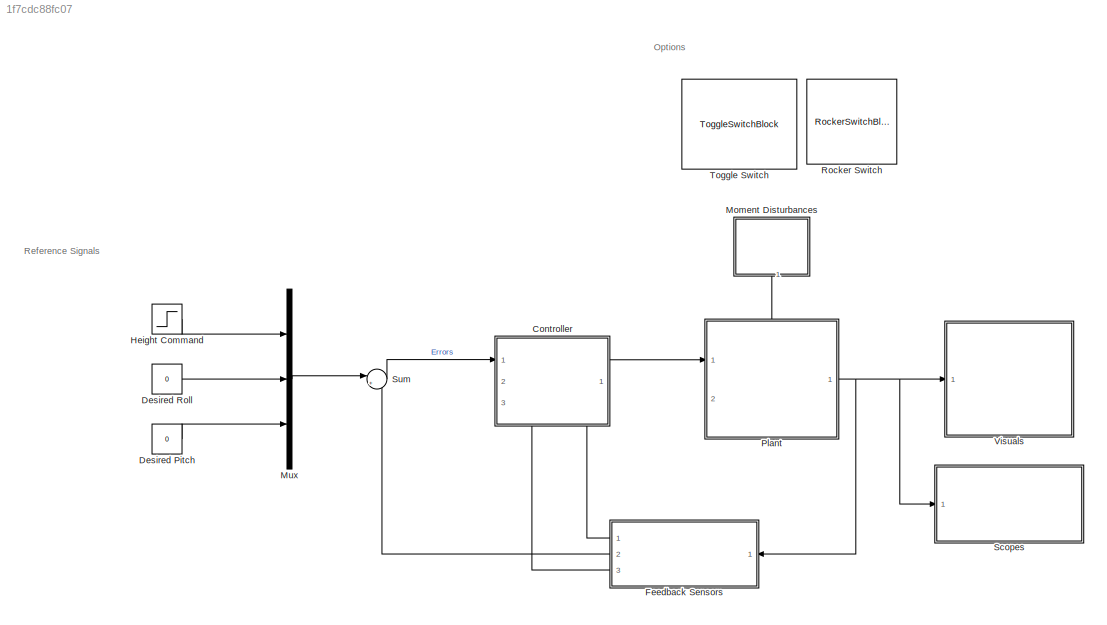
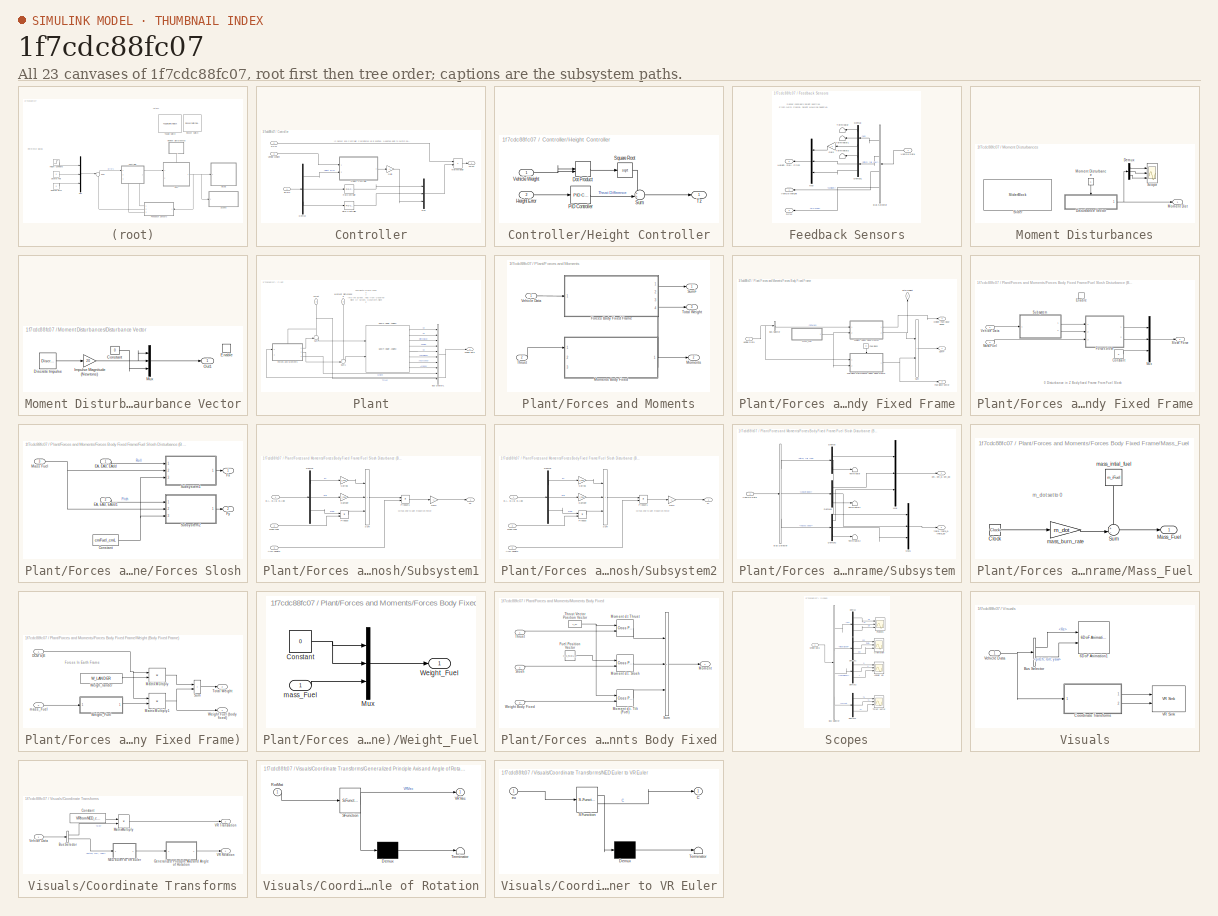
[diagram: thumbnail index - all 23 canvases of the model, root first then tree order]
MODEL slx_1f7cdc88fc07
KIND model
CONFIG AbsTol = auto
CONFIG EnableMultiTasking = off
CONFIG FixedStep = auto
CONFIG MaxStep = auto
CONFIG MinStep = auto
CONFIG RelTol = 1e-3
CONFIG SampleTimeConstraint = Unconstrained
CONFIG SolverName = VariableStepAuto
CONFIG StartTime = 0.0
CONFIG StopTime = 10.0
BLOCK [SubSystem] Controller
  PortSchema = {"entries":[{"content":{"sides":[{"content":{"connectorIds":["In1"]},"type":"ConnectorPlacement.EquallySpacedRectSide","uuid":"a9e81047-82e7-465f-ace1-8f718b90561e"},{"content":{"connectorIds":["Out1"],"side":"RIGHT"},"type":"ConnectorPlacement.EquallySpacedRectSide","uuid":"e48627af-c2aa-4531-b804-41f44ff16765"},{"content":{"connectorIds":[],"side":"TOP"},"type":"ConnectorPlacement.EquallySpacedR...<+395ch>
  Ports = [3, 1]
  RequestExecContextInheritance = off
  TreatAsAtomicUnit = on
BLOCK [Inport] Controller/DCM
  Port = 2
BLOCK [Demux] Controller/Demux
  Outputs = 3
  Ports = [1, 3]
BLOCK [Inport] Controller/Errors
BLOCK [Gain] Controller/Gain
  Gain = -1
BLOCK [SubSystem] Controller/Height Controller
  Ports = [2, 1]
  RequestExecContextInheritance = off
BLOCK [DotProduct] Controller/Height Controller/Dot Product
  OutDataTypeStr = Inherit: Inherit via internal rule
BLOCK [Inport] Controller/Height Controller/Height Error
  Port = 2
BLOCK [Reference] Controller/Height Controller/PID Controller  REF=slpidlib/PID Controller
  Ports = [1, 1]
  SourceBlock = slpidlib/PID Controller
  SourceProductBaseCode = SL
  SourceType = PID 1dof
BLOCK [Sqrt] Controller/Height Controller/Square Root
BLOCK [Sum] Controller/Height Controller/Sum
  Inputs = ++|
  Ports = [2, 1]
BLOCK [Outport] Controller/Height Controller/Tz
BLOCK [Inport] Controller/Height Controller/Vehicle Weight
BLOCK [Product] Controller/MatrixMultiply
  Multiplication = Matrix(*)
  Ports = [2, 1]
BLOCK [Mux] Controller/Mux
  DisplayOption = bar
  Inputs = 3
  Ports = [3, 1]
BLOCK [Reference] Controller/Pitch Controller  REF=slpidlib/PID Controller
  Ports = [1, 1]
  SourceBlock = slpidlib/PID Controller
  SourceProductBaseCode = SL
  SourceType = PID 1dof
BLOCK [Reference] Controller/Roll Controller  REF=slpidlib/PID Controller
  Ports = [1, 1]
  SourceBlock = slpidlib/PID Controller
  SourceProductBaseCode = SL
  SourceType = PID 1dof
BLOCK [Outport] Controller/Thrust
BLOCK [Inport] Controller/Vehicle Weight
  Port = 3
BLOCK [Constant] Desired Pitch
  Value = 0
BLOCK [Constant] Desired Roll
  Value = 0
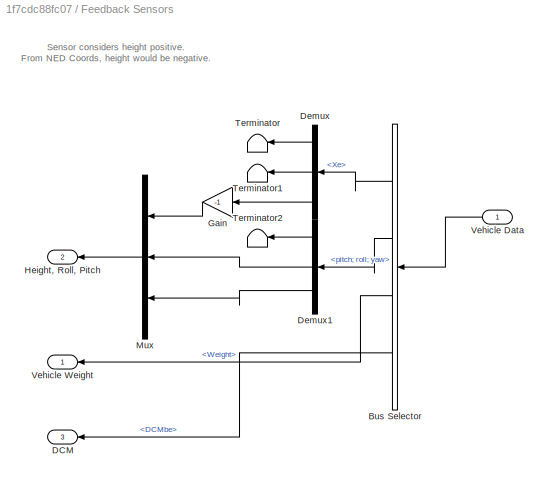
BLOCK [SubSystem] Feedback Sensors
  NameLocation = top
  Ports = [1, 3]
  RequestExecContextInheritance = off
BLOCK [BusSelector] Feedback Sensors/Bus Selector
  NameLocation = top
  OutputSignals = Xe,pitch; roll; yaw,Weight,DCMbe
  Ports = [1, 4]
BLOCK [Outport] Feedback Sensors/DCM
  NameLocation = top
  Port = 3
BLOCK [Demux] Feedback Sensors/Demux
  NameLocation = top
  Outputs = 3
  Ports = [1, 3]
BLOCK [Demux] Feedback Sensors/Demux1
  NameLocation = top
  Outputs = 3
  Ports = [1, 3]
BLOCK [Gain] Feedback Sensors/Gain
  Gain = -1
  NameLocation = top
BLOCK [Outport] Feedback Sensors/Height, Roll, Pitch
  NameLocation = top
  Port = 2
BLOCK [Mux] Feedback Sensors/Mux
  DisplayOption = bar
  Inputs = 3
  NameLocation = top
  Ports = [3, 1]
BLOCK [Terminator] Feedback Sensors/Terminator
  NameLocation = top
BLOCK [Terminator] Feedback Sensors/Terminator1
  NameLocation = top
BLOCK [Terminator] Feedback Sensors/Terminator2
  NameLocation = top
BLOCK [Inport] Feedback Sensors/Vehicle Data
  NameLocation = top
BLOCK [Outport] Feedback Sensors/Vehicle Weight
  NameLocation = top
BLOCK [Step] Height Command
  SampleTime = 0
BLOCK [SubSystem] Moment Disturbances
  NameLocation = top
  Ports = [0, 1]
  RequestExecContextInheritance = off
BLOCK [Demux] Moment Disturbances/Demux
  Outputs = 3
  Ports = [1, 3]
BLOCK [SubSystem] Moment Disturbances/Disturbance Vector
  Ports = [0, 1, 1]
  RequestExecContextInheritance = off
BLOCK [Constant] Moment Disturbances/Disturbance Vector/Constant
  Value = 0
BLOCK [Reference] Moment Disturbances/Disturbance Vector/Discrete Impulse  REF=dspsrcs4/Discrete 
Impulse
  Ports = [0, 1]
  SourceBlock = dspsrcs4/Discrete \nImpulse
  SourceProductBaseCode = DS
  SourceType = Discrete Impulse
BLOCK [EnablePort] Moment Disturbances/Disturbance Vector/Enable
  Ports = []
BLOCK [Gain] Moment Disturbances/Disturbance Vector/Impulse Magnitude (Newtons)
  Gain = 20
BLOCK [Mux] Moment Disturbances/Disturbance Vector/Mux
  DisplayOption = bar
  Inputs = 3
  Ports = [3, 1]
BLOCK [Outport] Moment Disturbances/Disturbance Vector/Out1
BLOCK [Outport] Moment Disturbances/Moment Dist
BLOCK [Constant] Moment Disturbances/Moment Disturbance
  NameLocation = left
BLOCK [Scope] Moment Disturbances/Scope
  Floating = off
  NumInputPorts = 3
  Ports = [3]
  ScopeSpecificationString = Simulink.scopes.TimeScopeBlockCfg('CurrentConfiguration', extmgr.ConfigurationSet(extmgr.Configuration('Core','General UI',true),extmgr.Configuration('Core','Source UI',true),extmgr.Configuration('Sources','WiredSimulink',true,'DataLoggingVariableName','ScopeData1'),extmgr.Configuration('Visuals','Time Domain',true,'SerializedDisplays',{struct('MinYLimReal','-1.00000','MaxYLimReal','1.00000','YLab...<+2762ch>
BLOCK [SliderBlock] Moment Disturbances/Slider
  ScaleMax = 20
BLOCK [Mux] Mux
  DisplayOption = bar
  Inputs = 3
  Ports = [3, 1]
BLOCK [SubSystem] Plant
  PortSchema = {"entries":[{"content":{"sides":[{"content":{"connectorIds":["In1"]},"type":"ConnectorPlacement.EquallySpacedRectSide","uuid":"a9e81047-82e7-465f-ace1-8f718b90561e"},{"content":{"connectorIds":["Out1"],"side":"RIGHT"},"type":"ConnectorPlacement.EquallySpacedRectSide","uuid":"e48627af-c2aa-4531-b804-41f44ff16765"},{"content":{"connectorIds":["In2"],"side":"TOP"},"type":"ConnectorPlacement.EquallySp...<+245ch>
  Ports = [2, 1]
  RequestExecContextInheritance = off
BLOCK [Reference] Plant/6DOF (Euler Angles)  REF=shared6dof/6DOF (Euler Angles)
  Ports = [2, 8]
  SourceBlock = shared6dof/6DOF (Euler Angles)
  SourceProductBaseCode = AE,PW,DR,MT,UV,VE
  SourceType = 6DOF EoM (Body Axis)
BLOCK [BusCreator] Plant/Bus Creator1
  DisplayOption = bar
  InheritFromInputs = on
  Inputs = 10
  Ports = [10, 1]
BLOCK [SubSystem] Plant/Forces and Moments
  PortSchema = {"entries":[{"content":{"sides":[{"content":{"connectorIds":["In1"]},"type":"ConnectorPlacement.EquallySpacedRectSide","uuid":"828f15e3-cbad-415f-85fb-ba6a8e0cd3b9"},{"content":{"connectorIds":["Out1","Out2","Out3"],"side":"RIGHT"},"type":"ConnectorPlacement.EquallySpacedRectSide","uuid":"5000816a-8e0b-4f65-bf77-7d05076903d9"},{"content":{"connectorIds":["In2"],"side":"TOP"},"type":"ConnectorPlace...<+259ch>
  Ports = [2, 3]
  RequestExecContextInheritance = off
BLOCK [SubSystem] Plant/Forces and Moments/Forces Body Fixed Frame
  PortSchema = {"entries":[{"content":{"sides":[{"content":{"connectorIds":["In1"]},"type":"ConnectorPlacement.EquallySpacedRectSide","uuid":"828f15e3-cbad-415f-85fb-ba6a8e0cd3b9"},{"content":{"connectorIds":["Out1","Out2"],"side":"RIGHT"},"type":"ConnectorPlacement.EquallySpacedRectSide","uuid":"5000816a-8e0b-4f65-bf77-7d05076903d9"},{"content":{"connectorIds":[],"side":"TOP"},"type":"ConnectorPlacement.Equally...<+404ch>
  Ports = [1, 4]
  RequestExecContextInheritance = off
  TreatAsAtomicUnit = on
BLOCK [BusSelector] Plant/Forces and Moments/Forces Body Fixed Frame/Bus Selector
  OutputSignals = DCMbe
  Ports = [1, 1]
BLOCK [Constant] Plant/Forces and Moments/Forces Body Fixed Frame/Fuel Slosh
  NameLocation = left
  Value = 0
BLOCK [SubSystem] Plant/Forces and Moments/Forces Body Fixed Frame/Fuel Slosh Disturbance (Body Fixed Frame
  Ports = [2, 1, 1]
  RequestExecContextInheritance = off
BLOCK [Constant] Plant/Forces and Moments/Forces Body Fixed Frame/Fuel Slosh Disturbance (Body Fixed Frame/Constant
  Value = 0
BLOCK [EnablePort] Plant/Forces and Moments/Forces Body Fixed Frame/Fuel Slosh Disturbance (Body Fixed Frame/Enable
  Ports = []
BLOCK [SubSystem] Plant/Forces and Moments/Forces Body Fixed Frame/Fuel Slosh Disturbance (Body Fixed Frame/Forces Slosh
  Ports = [3, 2]
  RequestExecContextInheritance = off
BLOCK [Constant] Plant/Forces and Moments/Forces Body Fixed Frame/Fuel Slosh Disturbance (Body Fixed Frame/Forces Slosh/Constant
  Value = cmFuel_cmL
BLOCK [Inport] Plant/Forces and Moments/Forces Body Fixed Frame/Fuel Slosh Disturbance (Body Fixed Frame/Forces Slosh/EA, EAd, EAdd
BLOCK [Inport] Plant/Forces and Moments/Forces Body Fixed Frame/Fuel Slosh Disturbance (Body Fixed Frame/Forces Slosh/EA, EAd, EAdd1
  Port = 2
BLOCK [Outport] Plant/Forces and Moments/Forces Body Fixed Frame/Fuel Slosh Disturbance (Body Fixed Frame/Forces Slosh/Fx
BLOCK [Outport] Plant/Forces and Moments/Forces Body Fixed Frame/Fuel Slosh Disturbance (Body Fixed Frame/Forces Slosh/Fy
  Port = 2
BLOCK [Inport] Plant/Forces and Moments/Forces Body Fixed Frame/Fuel Slosh Disturbance (Body Fixed Frame/Forces Slosh/Mass Fuel
  Port = 3
BLOCK [SubSystem] Plant/Forces and Moments/Forces Body Fixed Frame/Fuel Slosh Disturbance (Body Fixed Frame/Forces Slosh/Subsystem1
  Ports = [3, 1]
  RequestExecContextInheritance = off
BLOCK [Inport] Plant/Forces and Moments/Forces Body Fixed Frame/Fuel Slosh Disturbance (Body Fixed Frame/Forces Slosh/Subsystem1/Arm Length
  Port = 3
BLOCK [Gain] Plant/Forces and Moments/Forces Body Fixed Frame/Fuel Slosh Disturbance (Body Fixed Frame/Forces Slosh/Subsystem1/Damper
  Gain = c_Fuel
BLOCK [Demux] Plant/Forces and Moments/Forces Body Fixed Frame/Fuel Slosh Disturbance (Body Fixed Frame/Forces Slosh/Subsystem1/Demux
  Outputs = 3
  Ports = [1, 3]
BLOCK [Inport] Plant/Forces and Moments/Forces Body Fixed Frame/Fuel Slosh Disturbance (Body Fixed Frame/Forces Slosh/Subsystem1/EA, EAd, EAdd
BLOCK [Outport] Plant/Forces and Moments/Forces Body Fixed Frame/Fuel Slosh Disturbance (Body Fixed Frame/Forces Slosh/Subsystem1/Fx
BLOCK [Gain] Plant/Forces and Moments/Forces Body Fixed Frame/Fuel Slosh Disturbance (Body Fixed Frame/Forces Slosh/Subsystem1/Gain
  Gain = -1
BLOCK [Inport] Plant/Forces and Moments/Forces Body Fixed Frame/Fuel Slosh Disturbance (Body Fixed Frame/Forces Slosh/Subsystem1/Mass Fuel
  Port = 2
BLOCK [Product] Plant/Forces and Moments/Forces Body Fixed Frame/Fuel Slosh Disturbance (Body Fixed Frame/Forces Slosh/Subsystem1/Product
  Ports = [2, 1]
BLOCK [Product] Plant/Forces and Moments/Forces Body Fixed Frame/Fuel Slosh Disturbance (Body Fixed Frame/Forces Slosh/Subsystem1/Product1
  Ports = [2, 1]
BLOCK [Gain] Plant/Forces and Moments/Forces Body Fixed Frame/Fuel Slosh Disturbance (Body Fixed Frame/Forces Slosh/Subsystem1/Spring
  Gain = k_Fuel
BLOCK [Sum] Plant/Forces and Moments/Forces Body Fixed Frame/Fuel Slosh Disturbance (Body Fixed Frame/Forces Slosh/Subsystem1/Sum
  IconShape = rectangular
  Inputs = +++
  Ports = [3, 1]
BLOCK [SubSystem] Plant/Forces and Moments/Forces Body Fixed Frame/Fuel Slosh Disturbance (Body Fixed Frame/Forces Slosh/Subsystem2
  Ports = [3, 1]
  RequestExecContextInheritance = off
BLOCK [Inport] Plant/Forces and Moments/Forces Body Fixed Frame/Fuel Slosh Disturbance (Body Fixed Frame/Forces Slosh/Subsystem2/Arm Length
  Port = 3
BLOCK [Gain] Plant/Forces and Moments/Forces Body Fixed Frame/Fuel Slosh Disturbance (Body Fixed Frame/Forces Slosh/Subsystem2/Damper
  Gain = c_Fuel
BLOCK [Demux] Plant/Forces and Moments/Forces Body Fixed Frame/Fuel Slosh Disturbance (Body Fixed Frame/Forces Slosh/Subsystem2/Demux
  Outputs = 3
  Ports = [1, 3]
BLOCK [Inport] Plant/Forces and Moments/Forces Body Fixed Frame/Fuel Slosh Disturbance (Body Fixed Frame/Forces Slosh/Subsystem2/EA, EAd, EAdd
BLOCK [Outport] Plant/Forces and Moments/Forces Body Fixed Frame/Fuel Slosh Disturbance (Body Fixed Frame/Forces Slosh/Subsystem2/Fy
BLOCK [Gain] Plant/Forces and Moments/Forces Body Fixed Frame/Fuel Slosh Disturbance (Body Fixed Frame/Forces Slosh/Subsystem2/Gain
  Gain = -1
BLOCK [Inport] Plant/Forces and Moments/Forces Body Fixed Frame/Fuel Slosh Disturbance (Body Fixed Frame/Forces Slosh/Subsystem2/Mass Fuel
  Port = 2
BLOCK [Product] Plant/Forces and Moments/Forces Body Fixed Frame/Fuel Slosh Disturbance (Body Fixed Frame/Forces Slosh/Subsystem2/Product
  Ports = [2, 1]
BLOCK [Product] Plant/Forces and Moments/Forces Body Fixed Frame/Fuel Slosh Disturbance (Body Fixed Frame/Forces Slosh/Subsystem2/Product1
  Ports = [2, 1]
BLOCK [Gain] Plant/Forces and Moments/Forces Body Fixed Frame/Fuel Slosh Disturbance (Body Fixed Frame/Forces Slosh/Subsystem2/Spring
  Gain = k_Fuel
BLOCK [Sum] Plant/Forces and Moments/Forces Body Fixed Frame/Fuel Slosh Disturbance (Body Fixed Frame/Forces Slosh/Subsystem2/Sum
  IconShape = rectangular
  Inputs = +++
  Ports = [3, 1]
BLOCK [Inport] Plant/Forces and Moments/Forces Body Fixed Frame/Fuel Slosh Disturbance (Body Fixed Frame/Mass Fuel
  Port = 2
BLOCK [Mux] Plant/Forces and Moments/Forces Body Fixed Frame/Fuel Slosh Disturbance (Body Fixed Frame/Mux
  DisplayOption = bar
  Inputs = 3
  Ports = [3, 1]
BLOCK [Outport] Plant/Forces and Moments/Forces Body Fixed Frame/Fuel Slosh Disturbance (Body Fixed Frame/Slosh Force
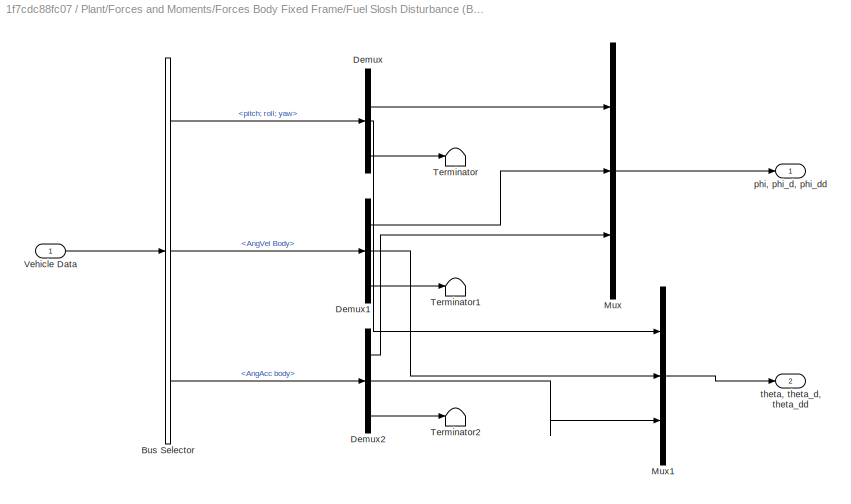
BLOCK [SubSystem] Plant/Forces and Moments/Forces Body Fixed Frame/Fuel Slosh Disturbance (Body Fixed Frame/Subsystem
  Ports = [1, 2]
  RequestExecContextInheritance = off
BLOCK [BusSelector] Plant/Forces and Moments/Forces Body Fixed Frame/Fuel Slosh Disturbance (Body Fixed Frame/Subsystem/Bus Selector
  NameLocation = right
  OutputSignals = pitch; roll; yaw,AngVel Body,AngAcc body
  Ports = [1, 3]
BLOCK [Demux] Plant/Forces and Moments/Forces Body Fixed Frame/Fuel Slosh Disturbance (Body Fixed Frame/Subsystem/Demux
  Outputs = 3
  Ports = [1, 3]
BLOCK [Demux] Plant/Forces and Moments/Forces Body Fixed Frame/Fuel Slosh Disturbance (Body Fixed Frame/Subsystem/Demux1
  Outputs = 3
  Ports = [1, 3]
BLOCK [Demux] Plant/Forces and Moments/Forces Body Fixed Frame/Fuel Slosh Disturbance (Body Fixed Frame/Subsystem/Demux2
  Outputs = 3
  Ports = [1, 3]
BLOCK [Mux] Plant/Forces and Moments/Forces Body Fixed Frame/Fuel Slosh Disturbance (Body Fixed Frame/Subsystem/Mux
  DisplayOption = bar
  Inputs = 3
  Ports = [3, 1]
BLOCK [Mux] Plant/Forces and Moments/Forces Body Fixed Frame/Fuel Slosh Disturbance (Body Fixed Frame/Subsystem/Mux1
  DisplayOption = bar
  Inputs = 3
  Ports = [3, 1]
BLOCK [Terminator] Plant/Forces and Moments/Forces Body Fixed Frame/Fuel Slosh Disturbance (Body Fixed Frame/Subsystem/Terminator
BLOCK [Terminator] Plant/Forces and Moments/Forces Body Fixed Frame/Fuel Slosh Disturbance (Body Fixed Frame/Subsystem/Terminator1
BLOCK [Terminator] Plant/Forces and Moments/Forces Body Fixed Frame/Fuel Slosh Disturbance (Body Fixed Frame/Subsystem/Terminator2
BLOCK [Inport] Plant/Forces and Moments/Forces Body Fixed Frame/Fuel Slosh Disturbance (Body Fixed Frame/Subsystem/Vehicle Data
BLOCK [Outport] Plant/Forces and Moments/Forces Body Fixed Frame/Fuel Slosh Disturbance (Body Fixed Frame/Subsystem/phi, phi_d, phi_dd
BLOCK [Outport] Plant/Forces and Moments/Forces Body Fixed Frame/Fuel Slosh Disturbance (Body Fixed Frame/Subsystem/theta, theta_d, theta_dd
  Port = 2
BLOCK [Inport] Plant/Forces and Moments/Forces Body Fixed Frame/Fuel Slosh Disturbance (Body Fixed Frame/Vehicle Data
BLOCK [Outport] Plant/Forces and Moments/Forces Body Fixed Frame/Fuel Slosh Vector
  Port = 3
BLOCK [SubSystem] Plant/Forces and Moments/Forces Body Fixed Frame/Mass_Fuel
  Ports = [0, 1]
  RequestExecContextInheritance = off
BLOCK [Clock] Plant/Forces and Moments/Forces Body Fixed Frame/Mass_Fuel/Clock
BLOCK [Outport] Plant/Forces and Moments/Forces Body Fixed Frame/Mass_Fuel/Mass_Fuel
BLOCK [Sum] Plant/Forces and Moments/Forces Body Fixed Frame/Mass_Fuel/Sum
  Inputs = +-|
  Ports = [2, 1]
BLOCK [Gain] Plant/Forces and Moments/Forces Body Fixed Frame/Mass_Fuel/mass_burn_rate
  Gain = m_dot
BLOCK [Constant] Plant/Forces and Moments/Forces Body Fixed Frame/Mass_Fuel/mass_intial_fuel
  NameLocation = left
  Value = m_iFuel
BLOCK [Sum] Plant/Forces and Moments/Forces Body Fixed Frame/Sum
  IconShape = rectangular
  Ports = [2, 1]
BLOCK [Outport] Plant/Forces and Moments/Forces Body Fixed Frame/SumF
BLOCK [Outport] Plant/Forces and Moments/Forces Body Fixed Frame/Total Weight
  NameLocation = right
  Port = 2
BLOCK [Inport] Plant/Forces and Moments/Forces Body Fixed Frame/Vehicle Data
BLOCK [SubSystem] Plant/Forces and Moments/Forces Body Fixed Frame/Weight (Body Fixed Frame)
  Ports = [2, 2]
  RequestExecContextInheritance = off
BLOCK [Inport] Plant/Forces and Moments/Forces Body Fixed Frame/Weight (Body Fixed Frame)/DCM b)E
BLOCK [Product] Plant/Forces and Moments/Forces Body Fixed Frame/Weight (Body Fixed Frame)/MatrixMultiply
  Multiplication = Matrix(*)
  Ports = [2, 1]
BLOCK [Product] Plant/Forces and Moments/Forces Body Fixed Frame/Weight (Body Fixed Frame)/MatrixMultiply1
  Multiplication = Matrix(*)
  Ports = [2, 1]
BLOCK [Sum] Plant/Forces and Moments/Forces Body Fixed Frame/Weight (Body Fixed Frame)/Sum
  IconShape = rectangular
  Ports = [2, 1]
BLOCK [Outport] Plant/Forces and Moments/Forces Body Fixed Frame/Weight (Body Fixed Frame)/Total Weight
  Port = 2
BLOCK [Constant] Plant/Forces and Moments/Forces Body Fixed Frame/Weight (Body Fixed Frame)/Weigh_lander
  Value = W_LANDER
BLOCK [Outport] Plant/Forces and Moments/Forces Body Fixed Frame/Weight (Body Fixed Frame)/Weight Fuel (body fixed)
BLOCK [SubSystem] Plant/Forces and Moments/Forces Body Fixed Frame/Weight (Body Fixed Frame)/Weight_Fuel
  Ports = [1, 1]
  RequestExecContextInheritance = off
  TreatAsAtomicUnit = on
BLOCK [Constant] Plant/Forces and Moments/Forces Body Fixed Frame/Weight (Body Fixed Frame)/Weight_Fuel/Constant
  Value = 0
BLOCK [Mux] Plant/Forces and Moments/Forces Body Fixed Frame/Weight (Body Fixed Frame)/Weight_Fuel/Mux
  DisplayOption = bar
  Inputs = 3
  Ports = [3, 1]
BLOCK [Outport] Plant/Forces and Moments/Forces Body Fixed Frame/Weight (Body Fixed Frame)/Weight_Fuel/Weight_Fuel
BLOCK [Inport] Plant/Forces and Moments/Forces Body Fixed Frame/Weight (Body Fixed Frame)/Weight_Fuel/mass_Fuel
BLOCK [Inport] Plant/Forces and Moments/Forces Body Fixed Frame/Weight (Body Fixed Frame)/mass_Fuel
  Port = 2
BLOCK [Outport] Plant/Forces and Moments/Forces Body Fixed Frame/Weight Fuel (Body Fixed)
  Port = 4
BLOCK [Outport] Plant/Forces and Moments/Moments
  Port = 2
BLOCK [SubSystem] Plant/Forces and Moments/Moments Body Fixed
  PortSchema = {"entries":[{"content":{"sides":[{"content":{"connectorIds":["In1"]},"type":"ConnectorPlacement.EquallySpacedRectSide","uuid":"bf632890-9061-4ebf-b839-17051433f7d2"},{"content":{"connectorIds":["Out1"],"side":"RIGHT"},"type":"ConnectorPlacement.EquallySpacedRectSide","uuid":"d3255547-983f-46fe-8ffa-de3f6c331a2a"},{"content":{"connectorIds":["In2","In3"],"side":"TOP"},"type":"ConnectorPlacement.Equ...<+251ch>
  Ports = [3, 1]
  RequestExecContextInheritance = off
BLOCK [Constant] Plant/Forces and Moments/Moments Body Fixed/Fuel Position Vector
  Value = CM_FUEL_b
BLOCK [Outport] Plant/Forces and Moments/Moments Body Fixed/Moment
BLOCK [Reference] Plant/Forces and Moments/Moments Body Fixed/Moment d.t Thrust  REF=matrix_library/Cross Product
  Ports = [2, 1]
  SourceBlock = matrix_library/Cross Product
  SourceProductBaseCode = SL
  SourceType = CrossProduct
BLOCK [Reference] Plant/Forces and Moments/Moments Body Fixed/Moment d.t. Slosh  REF=matrix_library/Cross Product
  Ports = [2, 1]
  SourceBlock = matrix_library/Cross Product
  SourceProductBaseCode = SL
  SourceType = CrossProduct
BLOCK [Reference] Plant/Forces and Moments/Moments Body Fixed/Moment d.t. Tilt (Fuel)  REF=matrix_library/Cross Product
  Ports = [2, 1]
  SourceBlock = matrix_library/Cross Product
  SourceProductBaseCode = SL
  SourceType = CrossProduct
BLOCK [Inport] Plant/Forces and Moments/Moments Body Fixed/Slosh
  Port = 2
BLOCK [Sum] Plant/Forces and Moments/Moments Body Fixed/Sum
  IconShape = rectangular
  Inputs = +++
  Ports = [3, 1]
BLOCK [Inport] Plant/Forces and Moments/Moments Body Fixed/Thrust
BLOCK [Constant] Plant/Forces and Moments/Moments Body Fixed/Thrust Vector Position Vector
  Value = L_TV
BLOCK [Inport] Plant/Forces and Moments/Moments Body Fixed/Weight Body Fixed
  Port = 3
BLOCK [Outport] Plant/Forces and Moments/SumF
BLOCK [Inport] Plant/Forces and Moments/Thrust
  NameLocation = top
  Port = 2
BLOCK [Outport] Plant/Forces and Moments/Total Weight
  Port = 3
BLOCK [Inport] Plant/Forces and Moments/Vehicle Data
BLOCK [Inport] Plant/Moment Disturbance
  NameLocation = left
  Port = 2
BLOCK [Sum] Plant/Sum
  Inputs = ++|
  Ports = [2, 1]
BLOCK [Sum] Plant/Sum1
  Inputs = ++|
  Ports = [2, 1]
BLOCK [Inport] Plant/Thrust
  NameLocation = left
BLOCK [Outport] Plant/Vehicle Data
BLOCK [RockerSwitchBlock] Rocker Switch
BLOCK [SubSystem] Scopes
  Ports = [1]
  RequestExecContextInheritance = off
BLOCK [Scope] Scopes/Angular Vel
  Floating = off
  NumInputPorts = 3
  Ports = [3]
  ScopeSpecificationString = Simulink.scopes.TimeScopeBlockCfg('CurrentConfiguration', extmgr.ConfigurationSet(extmgr.Configuration('Core','General UI',true),extmgr.Configuration('Core','Source UI',true),extmgr.Configuration('Sources','WiredSimulink',true,'DataLoggingVariableName','ScopeData2'),extmgr.Configuration('Visuals','Time Domain',true,'SerializedDisplays',{struct('MinYLimReal','-26.88297','MaxYLimReal','18.65455','YL...<+1448ch>
BLOCK [BusSelector] Scopes/Bus Selector
  OutputSignals = Xe,pitch; roll; yaw,AngVel Body,Thrust
  Ports = [1, 4]
BLOCK [Demux] Scopes/Demux
  Outputs = 3
  Ports = [1, 3]
BLOCK [Demux] Scopes/Demux1
  Outputs = 3
  Ports = [1, 3]
BLOCK [Demux] Scopes/Demux2
  Outputs = 3
  Ports = [1, 3]
BLOCK [Demux] Scopes/Demux3
  Outputs = 3
  Ports = [1, 3]
BLOCK [Scope] Scopes/Orientation
  Floating = off
  NumInputPorts = 3
  Ports = [3]
  ScopeSpecificationString = Simulink.scopes.TimeScopeBlockCfg('CurrentConfiguration', extmgr.ConfigurationSet(extmgr.Configuration('Core','General UI',true),extmgr.Configuration('Core','Source UI',true),extmgr.Configuration('Sources','WiredSimulink',true,'DataLoggingVariableName','ScopeData1'),extmgr.Configuration('Visuals','Time Domain',true,'SerializedDisplays',{struct('MinYLimReal','-3.92699','MaxYLimReal','3.92699','YLab...<+1452ch>
BLOCK [Scope] Scopes/Positions
  Floating = off
  NumInputPorts = 3
  Ports = [3]
  ScopeSpecificationString = Simulink.scopes.TimeScopeBlockCfg('CurrentConfiguration', extmgr.ConfigurationSet(extmgr.Configuration('Core','General UI',true),extmgr.Configuration('Core','Source UI',true),extmgr.Configuration('Sources','WiredSimulink',true),extmgr.Configuration('Visuals','Time Domain',true,'SerializedDisplays',{struct('MinYLimReal','-41.15102','MaxYLimReal','7.0606','YLabelReal','','MinYLimMag','0.00000','MaxY...<+1408ch>
BLOCK [Scope] Scopes/Thrust Vector
  Floating = off
  NumInputPorts = 3
  Ports = [3]
  ScopeSpecificationString = Simulink.scopes.TimeScopeBlockCfg('CurrentConfiguration', extmgr.ConfigurationSet(extmgr.Configuration('Core','General UI',true),extmgr.Configuration('Core','Source UI',true),extmgr.Configuration('Sources','WiredSimulink',true,'DataLoggingVariableName','ScopeData3'),extmgr.Configuration('Visuals','Time Domain',true,'SerializedDisplays',{struct('MinYLimReal','-1162.59298','MaxYLimReal','1000.28397'...<+1467ch>
BLOCK [Inport] Scopes/Vehicle Data
BLOCK [Sum] Sum
  Inputs = |+-
  Ports = [2, 1]
BLOCK [ToggleSwitchBlock] Toggle Switch
BLOCK [SubSystem] Visuals
  Permissions = ReadOnly
  Ports = [1]
  RequestExecContextInheritance = off
  TreatAsAtomicUnit = on
BLOCK [Reference] Visuals/6DoF Animation1  REF=aerolibanim/6DoF Animation
  Ports = [2]
  SourceBlock = aerolibanim/6DoF Animation
  SourceProductBaseCode = AE
  SourceType = 6DoF_Animation
BLOCK [BusSelector] Visuals/Bus Selector
  OutputSignals = Xe,pitch; roll; yaw
  Ports = [1, 2]
BLOCK [SubSystem] Visuals/Coordinate Transforms
  Ports = [1, 2]
  RequestExecContextInheritance = off
BLOCK [BusSelector] Visuals/Coordinate Transforms/Bus Selector
  OutputSignals = Xe,pitch; roll; yaw
  Ports = [1, 2]
BLOCK [Constant] Visuals/Coordinate Transforms/Constant
  Value = VRfromNED_cordT
BLOCK [SubSystem] Visuals/Coordinate Transforms/Generalized Principle Axis and Angle of Rotation
  ErrorFcn = Stateflow.Translate.translate
  PermitHierarchicalResolution = ExplicitOnly
  Ports = [1, 1]
  RequestExecContextInheritance = off
  SFBlockType = MATLAB Function
  TreatAsAtomicUnit = on
BLOCK [Demux] Visuals/Coordinate Transforms/Generalized Principle Axis and Angle of Rotation/ Demux 
  Outputs = 1
  Ports = [1, 1]
BLOCK [S-Function] Visuals/Coordinate Transforms/Generalized Principle Axis and Angle of Rotation/ SFunction 
  EnableBusSupport = on
  FunctionName = sf_sfun
  PortCounts = [1 2]
  Ports = [1, 2]
  SFcnIsStateOwnerBlock = off
  SFunctionDeploymentMode = off
  Tag = Stateflow S-Function 2
BLOCK [Terminator] Visuals/Coordinate Transforms/Generalized Principle Axis and Angle of Rotation/ Terminator 
BLOCK [Inport] Visuals/Coordinate Transforms/Generalized Principle Axis and Angle of Rotation/RotMat
BLOCK [Outport] Visuals/Coordinate Transforms/Generalized Principle Axis and Angle of Rotation/VRVec
BLOCK [Product] Visuals/Coordinate Transforms/MatrixMultiply
  Multiplication = Matrix(*)
  Ports = [2, 1]
BLOCK [SubSystem] Visuals/Coordinate Transforms/NED Euler to VR Euler
  ErrorFcn = Stateflow.Translate.translate
  PermitHierarchicalResolution = ExplicitOnly
  Ports = [1, 1]
  RequestExecContextInheritance = off
  SFBlockType = MATLAB Function
  TreatAsAtomicUnit = on
BLOCK [Demux] Visuals/Coordinate Transforms/NED Euler to VR Euler/ Demux 
  Outputs = 1
  Ports = [1, 1]
BLOCK [S-Function] Visuals/Coordinate Transforms/NED Euler to VR Euler/ SFunction 
  EnableBusSupport = on
  FunctionName = sf_sfun
  PortCounts = [1 2]
  Ports = [1, 2]
  SFcnIsStateOwnerBlock = off
  SFunctionDeploymentMode = off
  Tag = Stateflow S-Function 3
BLOCK [Terminator] Visuals/Coordinate Transforms/NED Euler to VR Euler/ Terminator 
BLOCK [Outport] Visuals/Coordinate Transforms/NED Euler to VR Euler/C
BLOCK [Inport] Visuals/Coordinate Transforms/NED Euler to VR Euler/eu
BLOCK [Outport] Visuals/Coordinate Transforms/VR Rotation
BLOCK [Outport] Visuals/Coordinate Transforms/VR Translation
  Port = 2
BLOCK [Inport] Visuals/Coordinate Transforms/Vehicle Data
BLOCK [Reference] Visuals/VR Sink  REF=vrlib/VR Sink
  InstantiateOnLoad = on
  Ports = [2]
  SourceBlock = vrlib/VR Sink
  SourceProductBaseCode = SL
  SourceType = Virtual Reality Sink
BLOCK [Inport] Visuals/Vehicle Data
ANNOTATION (root): Options
ANNOTATION (root): Reference Signals
ANNOTATION Controller: In Sensor and Controller Coordinates up is positive. Negative gain to switch back to NED
ANNOTATION Feedback Sensors: Sensor considers height positive. From NED Coords, height would be negative.
ANNOTATION Plant: Coordinate Frame used. X Into the Screen. Away from Observer Y Right Of Screen. Observer's Right Z Down to ground. Observer's Ground
ANNOTATION Plant/Forces and Moments/Forces Body Fixed Frame/Fuel Slosh Disturbance (Body Fixed Frame: 0 Disturbance in Z Body fixed Frame From Fuel Slosh
ANNOTATION Plant/Forces and Moments/Forces Body Fixed Frame/Fuel Slosh Disturbance (Body Fixed Frame/Forces Slosh/Subsystem1: Minus one to get Reaction Force
ANNOTATION Plant/Forces and Moments/Forces Body Fixed Frame/Fuel Slosh Disturbance (Body Fixed Frame/Forces Slosh/Subsystem2: Minus one to get Reaction Force
ANNOTATION Plant/Forces and Moments/Forces Body Fixed Frame/Mass_Fuel: m_dot set to 0
ANNOTATION Plant/Forces and Moments/Forces Body Fixed Frame/Weight (Body Fixed Frame): Forces In Earth Frame
LINE Controller/DCM:1 -> Controller/MatrixMultiply:1
LINE Controller/Demux:1 -> Controller/Height Controller:2
LINE Controller/Demux:2 -> Controller/Roll Controller:1
LINE Controller/Demux:3 -> Controller/Pitch Controller:1
LINE Controller/Errors:1 -> Controller/Demux:1
LINE Controller/Gain:1 -> Controller/Mux:3
LINE Controller/Height Controller/Dot Product:1 -> Controller/Height Controller/Square Root:1
LINE Controller/Height Controller/Height Error:1 -> Controller/Height Controller/PID Controller:1
LINE Controller/Height Controller/PID Controller:1 -> Controller/Height Controller/Sum:2
LINE Controller/Height Controller/Square Root:1 -> Controller/Height Controller/Sum:1
LINE Controller/Height Controller/Sum:1 -> Controller/Height Controller/Tz:1
NET Controller/Height Controller/Vehicle Weight:1 -> Controller/Height Controller/Dot Product:1, Controller/Height Controller/Dot Product:2
LINE Controller/Height Controller:1 -> Controller/Gain:1
LINE Controller/MatrixMultiply:1 -> Controller/Thrust:1
LINE Controller/Mux:1 -> Controller/MatrixMultiply:2
LINE Controller/Pitch Controller:1 -> Controller/Mux:2
LINE Controller/Roll Controller:1 -> Controller/Mux:1
LINE Controller/Vehicle Weight:1 -> Controller/Height Controller:1
LINE Controller:1 -> Plant:1
LINE Desired Pitch:1 -> Mux:3
LINE Desired Roll:1 -> Mux:2
LINE Feedback Sensors/Bus Selector:1 -> Feedback Sensors/Demux:1
LINE Feedback Sensors/Bus Selector:2 -> Feedback Sensors/Demux1:1
LINE Feedback Sensors/Bus Selector:3 -> Feedback Sensors/Vehicle Weight:1
LINE Feedback Sensors/Bus Selector:4 -> Feedback Sensors/DCM:1
LINE Feedback Sensors/Demux1:1 -> Feedback Sensors/Terminator2:1
LINE Feedback Sensors/Demux1:2 -> Feedback Sensors/Mux:2
LINE Feedback Sensors/Demux1:3 -> Feedback Sensors/Mux:3
LINE Feedback Sensors/Demux:1 -> Feedback Sensors/Terminator:1
LINE Feedback Sensors/Demux:2 -> Feedback Sensors/Terminator1:1
LINE Feedback Sensors/Demux:3 -> Feedback Sensors/Gain:1
LINE Feedback Sensors/Gain:1 -> Feedback Sensors/Mux:1
LINE Feedback Sensors/Mux:1 -> Feedback Sensors/Height, Roll, Pitch:1
LINE Feedback Sensors/Vehicle Data:1 -> Feedback Sensors/Bus Selector:1
LINE Feedback Sensors:1 -> Controller:3
LINE Feedback Sensors:2 -> Sum:2
LINE Feedback Sensors:3 -> Controller:2
LINE Height Command:1 -> Mux:1
LINE Moment Disturbances/Demux:1 -> Moment Disturbances/Scope:1
LINE Moment Disturbances/Demux:2 -> Moment Disturbances/Scope:2
LINE Moment Disturbances/Demux:3 -> Moment Disturbances/Scope:3
LINE Moment Disturbances/Disturbance Vector/Constant:1 -> Moment Disturbances/Disturbance Vector/Mux:3
LINE Moment Disturbances/Disturbance Vector/Discrete Impulse:1 -> Moment Disturbances/Disturbance Vector/Impulse Magnitude (Newtons):1
NET Moment Disturbances/Disturbance Vector/Impulse Magnitude (Newtons):1 -> Moment Disturbances/Disturbance Vector/Mux:1, Moment Disturbances/Disturbance Vector/Mux:2
LINE Moment Disturbances/Disturbance Vector/Mux:1 -> Moment Disturbances/Disturbance Vector/Out1:1
NET Moment Disturbances/Disturbance Vector:1 -> Moment Disturbances/Demux:1, Moment Disturbances/Moment Dist:1
LINE Moment Disturbances/Moment Disturbance:1 -> Moment Disturbances/Disturbance Vector:enable
LINE Moment Disturbances:1 -> Plant:2
LINE Mux:1 -> Sum:1
LINE Plant/6DOF (Euler Angles):1 -> Plant/Bus Creator1:1
LINE Plant/6DOF (Euler Angles):2 -> Plant/Bus Creator1:2
LINE Plant/6DOF (Euler Angles):3 -> Plant/Bus Creator1:3
LINE Plant/6DOF (Euler Angles):4 -> Plant/Bus Creator1:4
LINE Plant/6DOF (Euler Angles):5 -> Plant/Bus Creator1:5
LINE Plant/6DOF (Euler Angles):6 -> Plant/Bus Creator1:6
LINE Plant/6DOF (Euler Angles):7 -> Plant/Bus Creator1:7
LINE Plant/6DOF (Euler Angles):8 -> Plant/Bus Creator1:8
NET Plant/Bus Creator1:1 -> Plant/Forces and Moments:1, Plant/Vehicle Data:1
LINE Plant/Forces and Moments/Forces Body Fixed Frame/Bus Selector:1 -> Plant/Forces and Moments/Forces Body Fixed Frame/Weight (Body Fixed Frame):1
LINE Plant/Forces and Moments/Forces Body Fixed Frame/Fuel Slosh Disturbance (Body Fixed Frame/Constant:1 -> Plant/Forces and Moments/Forces Body Fixed Frame/Fuel Slosh Disturbance (Body Fixed Frame/Mux:3
NET Plant/Forces and Moments/Forces Body Fixed Frame/Fuel Slosh Disturbance (Body Fixed Frame/Forces Slosh/Constant:1 -> Plant/Forces and Moments/Forces Body Fixed Frame/Fuel Slosh Disturbance (Body Fixed Frame/Forces Slosh/Subsystem1:3, Plant/Forces and Moments/Forces Body Fixed Frame/Fuel Slosh Disturbance (Body Fixed Frame/Forces Slosh/Subsystem2:3
LINE Plant/Forces and Moments/Forces Body Fixed Frame/Fuel Slosh Disturbance (Body Fixed Frame/Forces Slosh/EA, EAd, EAdd1:1 -> Plant/Forces and Moments/Forces Body Fixed Frame/Fuel Slosh Disturbance (Body Fixed Frame/Forces Slosh/Subsystem2:1
LINE Plant/Forces and Moments/Forces Body Fixed Frame/Fuel Slosh Disturbance (Body Fixed Frame/Forces Slosh/EA, EAd, EAdd:1 -> Plant/Forces and Moments/Forces Body Fixed Frame/Fuel Slosh Disturbance (Body Fixed Frame/Forces Slosh/Subsystem1:1
NET Plant/Forces and Moments/Forces Body Fixed Frame/Fuel Slosh Disturbance (Body Fixed Frame/Forces Slosh/Mass Fuel:1 -> Plant/Forces and Moments/Forces Body Fixed Frame/Fuel Slosh Disturbance (Body Fixed Frame/Forces Slosh/Subsystem1:2, Plant/Forces and Moments/Forces Body Fixed Frame/Fuel Slosh Disturbance (Body Fixed Frame/Forces Slosh/Subsystem2:2
LINE Plant/Forces and Moments/Forces Body Fixed Frame/Fuel Slosh Disturbance (Body Fixed Frame/Forces Slosh/Subsystem1/Arm Length:1 -> Plant/Forces and Moments/Forces Body Fixed Frame/Fuel Slosh Disturbance (Body Fixed Frame/Forces Slosh/Subsystem1/Product1:2
LINE Plant/Forces and Moments/Forces Body Fixed Frame/Fuel Slosh Disturbance (Body Fixed Frame/Forces Slosh/Subsystem1/Damper:1 -> Plant/Forces and Moments/Forces Body Fixed Frame/Fuel Slosh Disturbance (Body Fixed Frame/Forces Slosh/Subsystem1/Sum:2
LINE Plant/Forces and Moments/Forces Body Fixed Frame/Fuel Slosh Disturbance (Body Fixed Frame/Forces Slosh/Subsystem1/Demux:1 -> Plant/Forces and Moments/Forces Body Fixed Frame/Fuel Slosh Disturbance (Body Fixed Frame/Forces Slosh/Subsystem1/Spring:1
LINE Plant/Forces and Moments/Forces Body Fixed Frame/Fuel Slosh Disturbance (Body Fixed Frame/Forces Slosh/Subsystem1/Demux:2 -> Plant/Forces and Moments/Forces Body Fixed Frame/Fuel Slosh Disturbance (Body Fixed Frame/Forces Slosh/Subsystem1/Damper:1
LINE Plant/Forces and Moments/Forces Body Fixed Frame/Fuel Slosh Disturbance (Body Fixed Frame/Forces Slosh/Subsystem1/Demux:3 -> Plant/Forces and Moments/Forces Body Fixed Frame/Fuel Slosh Disturbance (Body Fixed Frame/Forces Slosh/Subsystem1/Product:1
LINE Plant/Forces and Moments/Forces Body Fixed Frame/Fuel Slosh Disturbance (Body Fixed Frame/Forces Slosh/Subsystem1/EA, EAd, EAdd:1 -> Plant/Forces and Moments/Forces Body Fixed Frame/Fuel Slosh Disturbance (Body Fixed Frame/Forces Slosh/Subsystem1/Demux:1
LINE Plant/Forces and Moments/Forces Body Fixed Frame/Fuel Slosh Disturbance (Body Fixed Frame/Forces Slosh/Subsystem1/Gain:1 -> Plant/Forces and Moments/Forces Body Fixed Frame/Fuel Slosh Disturbance (Body Fixed Frame/Forces Slosh/Subsystem1/Fx:1
LINE Plant/Forces and Moments/Forces Body Fixed Frame/Fuel Slosh Disturbance (Body Fixed Frame/Forces Slosh/Subsystem1/Mass Fuel:1 -> Plant/Forces and Moments/Forces Body Fixed Frame/Fuel Slosh Disturbance (Body Fixed Frame/Forces Slosh/Subsystem1/Product:2
LINE Plant/Forces and Moments/Forces Body Fixed Frame/Fuel Slosh Disturbance (Body Fixed Frame/Forces Slosh/Subsystem1/Product1:1 -> Plant/Forces and Moments/Forces Body Fixed Frame/Fuel Slosh Disturbance (Body Fixed Frame/Forces Slosh/Subsystem1/Gain:1
LINE Plant/Forces and Moments/Forces Body Fixed Frame/Fuel Slosh Disturbance (Body Fixed Frame/Forces Slosh/Subsystem1/Product:1 -> Plant/Forces and Moments/Forces Body Fixed Frame/Fuel Slosh Disturbance (Body Fixed Frame/Forces Slosh/Subsystem1/Sum:3
LINE Plant/Forces and Moments/Forces Body Fixed Frame/Fuel Slosh Disturbance (Body Fixed Frame/Forces Slosh/Subsystem1/Spring:1 -> Plant/Forces and Moments/Forces Body Fixed Frame/Fuel Slosh Disturbance (Body Fixed Frame/Forces Slosh/Subsystem1/Sum:1
LINE Plant/Forces and Moments/Forces Body Fixed Frame/Fuel Slosh Disturbance (Body Fixed Frame/Forces Slosh/Subsystem1/Sum:1 -> Plant/Forces and Moments/Forces Body Fixed Frame/Fuel Slosh Disturbance (Body Fixed Frame/Forces Slosh/Subsystem1/Product1:1
LINE Plant/Forces and Moments/Forces Body Fixed Frame/Fuel Slosh Disturbance (Body Fixed Frame/Forces Slosh/Subsystem1:1 -> Plant/Forces and Moments/Forces Body Fixed Frame/Fuel Slosh Disturbance (Body Fixed Frame/Forces Slosh/Fx:1
LINE Plant/Forces and Moments/Forces Body Fixed Frame/Fuel Slosh Disturbance (Body Fixed Frame/Forces Slosh/Subsystem2/Arm Length:1 -> Plant/Forces and Moments/Forces Body Fixed Frame/Fuel Slosh Disturbance (Body Fixed Frame/Forces Slosh/Subsystem2/Product1:2
LINE Plant/Forces and Moments/Forces Body Fixed Frame/Fuel Slosh Disturbance (Body Fixed Frame/Forces Slosh/Subsystem2/Damper:1 -> Plant/Forces and Moments/Forces Body Fixed Frame/Fuel Slosh Disturbance (Body Fixed Frame/Forces Slosh/Subsystem2/Sum:2
LINE Plant/Forces and Moments/Forces Body Fixed Frame/Fuel Slosh Disturbance (Body Fixed Frame/Forces Slosh/Subsystem2/Demux:1 -> Plant/Forces and Moments/Forces Body Fixed Frame/Fuel Slosh Disturbance (Body Fixed Frame/Forces Slosh/Subsystem2/Spring:1
LINE Plant/Forces and Moments/Forces Body Fixed Frame/Fuel Slosh Disturbance (Body Fixed Frame/Forces Slosh/Subsystem2/Demux:2 -> Plant/Forces and Moments/Forces Body Fixed Frame/Fuel Slosh Disturbance (Body Fixed Frame/Forces Slosh/Subsystem2/Damper:1
LINE Plant/Forces and Moments/Forces Body Fixed Frame/Fuel Slosh Disturbance (Body Fixed Frame/Forces Slosh/Subsystem2/Demux:3 -> Plant/Forces and Moments/Forces Body Fixed Frame/Fuel Slosh Disturbance (Body Fixed Frame/Forces Slosh/Subsystem2/Product:1
LINE Plant/Forces and Moments/Forces Body Fixed Frame/Fuel Slosh Disturbance (Body Fixed Frame/Forces Slosh/Subsystem2/EA, EAd, EAdd:1 -> Plant/Forces and Moments/Forces Body Fixed Frame/Fuel Slosh Disturbance (Body Fixed Frame/Forces Slosh/Subsystem2/Demux:1
LINE Plant/Forces and Moments/Forces Body Fixed Frame/Fuel Slosh Disturbance (Body Fixed Frame/Forces Slosh/Subsystem2/Gain:1 -> Plant/Forces and Moments/Forces Body Fixed Frame/Fuel Slosh Disturbance (Body Fixed Frame/Forces Slosh/Subsystem2/Fy:1
LINE Plant/Forces and Moments/Forces Body Fixed Frame/Fuel Slosh Disturbance (Body Fixed Frame/Forces Slosh/Subsystem2/Mass Fuel:1 -> Plant/Forces and Moments/Forces Body Fixed Frame/Fuel Slosh Disturbance (Body Fixed Frame/Forces Slosh/Subsystem2/Product:2
LINE Plant/Forces and Moments/Forces Body Fixed Frame/Fuel Slosh Disturbance (Body Fixed Frame/Forces Slosh/Subsystem2/Product1:1 -> Plant/Forces and Moments/Forces Body Fixed Frame/Fuel Slosh Disturbance (Body Fixed Frame/Forces Slosh/Subsystem2/Gain:1
LINE Plant/Forces and Moments/Forces Body Fixed Frame/Fuel Slosh Disturbance (Body Fixed Frame/Forces Slosh/Subsystem2/Product:1 -> Plant/Forces and Moments/Forces Body Fixed Frame/Fuel Slosh Disturbance (Body Fixed Frame/Forces Slosh/Subsystem2/Sum:3
LINE Plant/Forces and Moments/Forces Body Fixed Frame/Fuel Slosh Disturbance (Body Fixed Frame/Forces Slosh/Subsystem2/Spring:1 -> Plant/Forces and Moments/Forces Body Fixed Frame/Fuel Slosh Disturbance (Body Fixed Frame/Forces Slosh/Subsystem2/Sum:1
LINE Plant/Forces and Moments/Forces Body Fixed Frame/Fuel Slosh Disturbance (Body Fixed Frame/Forces Slosh/Subsystem2/Sum:1 -> Plant/Forces and Moments/Forces Body Fixed Frame/Fuel Slosh Disturbance (Body Fixed Frame/Forces Slosh/Subsystem2/Product1:1
LINE Plant/Forces and Moments/Forces Body Fixed Frame/Fuel Slosh Disturbance (Body Fixed Frame/Forces Slosh/Subsystem2:1 -> Plant/Forces and Moments/Forces Body Fixed Frame/Fuel Slosh Disturbance (Body Fixed Frame/Forces Slosh/Fy:1
LINE Plant/Forces and Moments/Forces Body Fixed Frame/Fuel Slosh Disturbance (Body Fixed Frame/Forces Slosh:1 -> Plant/Forces and Moments/Forces Body Fixed Frame/Fuel Slosh Disturbance (Body Fixed Frame/Mux:1
LINE Plant/Forces and Moments/Forces Body Fixed Frame/Fuel Slosh Disturbance (Body Fixed Frame/Forces Slosh:2 -> Plant/Forces and Moments/Forces Body Fixed Frame/Fuel Slosh Disturbance (Body Fixed Frame/Mux:2
LINE Plant/Forces and Moments/Forces Body Fixed Frame/Fuel Slosh Disturbance (Body Fixed Frame/Mass Fuel:1 -> Plant/Forces and Moments/Forces Body Fixed Frame/Fuel Slosh Disturbance (Body Fixed Frame/Forces Slosh:3
LINE Plant/Forces and Moments/Forces Body Fixed Frame/Fuel Slosh Disturbance (Body Fixed Frame/Mux:1 -> Plant/Forces and Moments/Forces Body Fixed Frame/Fuel Slosh Disturbance (Body Fixed Frame/Slosh Force:1
LINE Plant/Forces and Moments/Forces Body Fixed Frame/Fuel Slosh Disturbance (Body Fixed Frame/Subsystem/Bus Selector:1 -> Plant/Forces and Moments/Forces Body Fixed Frame/Fuel Slosh Disturbance (Body Fixed Frame/Subsystem/Demux:1
LINE Plant/Forces and Moments/Forces Body Fixed Frame/Fuel Slosh Disturbance (Body Fixed Frame/Subsystem/Bus Selector:2 -> Plant/Forces and Moments/Forces Body Fixed Frame/Fuel Slosh Disturbance (Body Fixed Frame/Subsystem/Demux1:1
LINE Plant/Forces and Moments/Forces Body Fixed Frame/Fuel Slosh Disturbance (Body Fixed Frame/Subsystem/Bus Selector:3 -> Plant/Forces and Moments/Forces Body Fixed Frame/Fuel Slosh Disturbance (Body Fixed Frame/Subsystem/Demux2:1
LINE Plant/Forces and Moments/Forces Body Fixed Frame/Fuel Slosh Disturbance (Body Fixed Frame/Subsystem/Demux1:1 -> Plant/Forces and Moments/Forces Body Fixed Frame/Fuel Slosh Disturbance (Body Fixed Frame/Subsystem/Mux:2
LINE Plant/Forces and Moments/Forces Body Fixed Frame/Fuel Slosh Disturbance (Body Fixed Frame/Subsystem/Demux1:2 -> Plant/Forces and Moments/Forces Body Fixed Frame/Fuel Slosh Disturbance (Body Fixed Frame/Subsystem/Mux1:2
LINE Plant/Forces and Moments/Forces Body Fixed Frame/Fuel Slosh Disturbance (Body Fixed Frame/Subsystem/Demux1:3 -> Plant/Forces and Moments/Forces Body Fixed Frame/Fuel Slosh Disturbance (Body Fixed Frame/Subsystem/Terminator1:1
LINE Plant/Forces and Moments/Forces Body Fixed Frame/Fuel Slosh Disturbance (Body Fixed Frame/Subsystem/Demux2:1 -> Plant/Forces and Moments/Forces Body Fixed Frame/Fuel Slosh Disturbance (Body Fixed Frame/Subsystem/Mux:3
LINE Plant/Forces and Moments/Forces Body Fixed Frame/Fuel Slosh Disturbance (Body Fixed Frame/Subsystem/Demux2:2 -> Plant/Forces and Moments/Forces Body Fixed Frame/Fuel Slosh Disturbance (Body Fixed Frame/Subsystem/Mux1:3
LINE Plant/Forces and Moments/Forces Body Fixed Frame/Fuel Slosh Disturbance (Body Fixed Frame/Subsystem/Demux2:3 -> Plant/Forces and Moments/Forces Body Fixed Frame/Fuel Slosh Disturbance (Body Fixed Frame/Subsystem/Terminator2:1
LINE Plant/Forces and Moments/Forces Body Fixed Frame/Fuel Slosh Disturbance (Body Fixed Frame/Subsystem/Demux:1 -> Plant/Forces and Moments/Forces Body Fixed Frame/Fuel Slosh Disturbance (Body Fixed Frame/Subsystem/Mux:1
LINE Plant/Forces and Moments/Forces Body Fixed Frame/Fuel Slosh Disturbance (Body Fixed Frame/Subsystem/Demux:2 -> Plant/Forces and Moments/Forces Body Fixed Frame/Fuel Slosh Disturbance (Body Fixed Frame/Subsystem/Mux1:1
LINE Plant/Forces and Moments/Forces Body Fixed Frame/Fuel Slosh Disturbance (Body Fixed Frame/Subsystem/Demux:3 -> Plant/Forces and Moments/Forces Body Fixed Frame/Fuel Slosh Disturbance (Body Fixed Frame/Subsystem/Terminator:1
LINE Plant/Forces and Moments/Forces Body Fixed Frame/Fuel Slosh Disturbance (Body Fixed Frame/Subsystem/Mux1:1 -> Plant/Forces and Moments/Forces Body Fixed Frame/Fuel Slosh Disturbance (Body Fixed Frame/Subsystem/theta, theta_d, theta_dd:1
LINE Plant/Forces and Moments/Forces Body Fixed Frame/Fuel Slosh Disturbance (Body Fixed Frame/Subsystem/Mux:1 -> Plant/Forces and Moments/Forces Body Fixed Frame/Fuel Slosh Disturbance (Body Fixed Frame/Subsystem/phi, phi_d, phi_dd:1
LINE Plant/Forces and Moments/Forces Body Fixed Frame/Fuel Slosh Disturbance (Body Fixed Frame/Subsystem/Vehicle Data:1 -> Plant/Forces and Moments/Forces Body Fixed Frame/Fuel Slosh Disturbance (Body Fixed Frame/Subsystem/Bus Selector:1
LINE Plant/Forces and Moments/Forces Body Fixed Frame/Fuel Slosh Disturbance (Body Fixed Frame/Subsystem:1 -> Plant/Forces and Moments/Forces Body Fixed Frame/Fuel Slosh Disturbance (Body Fixed Frame/Forces Slosh:1
LINE Plant/Forces and Moments/Forces Body Fixed Frame/Fuel Slosh Disturbance (Body Fixed Frame/Subsystem:2 -> Plant/Forces and Moments/Forces Body Fixed Frame/Fuel Slosh Disturbance (Body Fixed Frame/Forces Slosh:2
LINE Plant/Forces and Moments/Forces Body Fixed Frame/Fuel Slosh Disturbance (Body Fixed Frame/Vehicle Data:1 -> Plant/Forces and Moments/Forces Body Fixed Frame/Fuel Slosh Disturbance (Body Fixed Frame/Subsystem:1
NET Plant/Forces and Moments/Forces Body Fixed Frame/Fuel Slosh Disturbance (Body Fixed Frame:1 -> Plant/Forces and Moments/Forces Body Fixed Frame/Fuel Slosh Vector:1, Plant/Forces and Moments/Forces Body Fixed Frame/Sum:2
LINE Plant/Forces and Moments/Forces Body Fixed Frame/Fuel Slosh:1 -> Plant/Forces and Moments/Forces Body Fixed Frame/Fuel Slosh Disturbance (Body Fixed Frame:enable
LINE Plant/Forces and Moments/Forces Body Fixed Frame/Mass_Fuel/Clock:1 -> Plant/Forces and Moments/Forces Body Fixed Frame/Mass_Fuel/mass_burn_rate:1
LINE Plant/Forces and Moments/Forces Body Fixed Frame/Mass_Fuel/Sum:1 -> Plant/Forces and Moments/Forces Body Fixed Frame/Mass_Fuel/Mass_Fuel:1
LINE Plant/Forces and Moments/Forces Body Fixed Frame/Mass_Fuel/mass_burn_rate:1 -> Plant/Forces and Moments/Forces Body Fixed Frame/Mass_Fuel/Sum:2
LINE Plant/Forces and Moments/Forces Body Fixed Frame/Mass_Fuel/mass_intial_fuel:1 -> Plant/Forces and Moments/Forces Body Fixed Frame/Mass_Fuel/Sum:1
NET Plant/Forces and Moments/Forces Body Fixed Frame/Mass_Fuel:1 -> Plant/Forces and Moments/Forces Body Fixed Frame/Fuel Slosh Disturbance (Body Fixed Frame:2, Plant/Forces and Moments/Forces Body Fixed Frame/Weight (Body Fixed Frame):2
LINE Plant/Forces and Moments/Forces Body Fixed Frame/Sum:1 -> Plant/Forces and Moments/Forces Body Fixed Frame/SumF:1
NET Plant/Forces and Moments/Forces Body Fixed Frame/Vehicle Data:1 -> Plant/Forces and Moments/Forces Body Fixed Frame/Bus Selector:1, Plant/Forces and Moments/Forces Body Fixed Frame/Fuel Slosh Disturbance (Body Fixed Frame:1
NET Plant/Forces and Moments/Forces Body Fixed Frame/Weight (Body Fixed Frame)/DCM b)E:1 -> Plant/Forces and Moments/Forces Body Fixed Frame/Weight (Body Fixed Frame)/MatrixMultiply1:1, Plant/Forces and Moments/Forces Body Fixed Frame/Weight (Body Fixed Frame)/MatrixMultiply:1
NET Plant/Forces and Moments/Forces Body Fixed Frame/Weight (Body Fixed Frame)/MatrixMultiply1:1 -> Plant/Forces and Moments/Forces Body Fixed Frame/Weight (Body Fixed Frame)/Sum:2, Plant/Forces and Moments/Forces Body Fixed Frame/Weight (Body Fixed Frame)/Weight Fuel (body fixed):1
LINE Plant/Forces and Moments/Forces Body Fixed Frame/Weight (Body Fixed Frame)/MatrixMultiply:1 -> Plant/Forces and Moments/Forces Body Fixed Frame/Weight (Body Fixed Frame)/Sum:1
LINE Plant/Forces and Moments/Forces Body Fixed Frame/Weight (Body Fixed Frame)/Sum:1 -> Plant/Forces and Moments/Forces Body Fixed Frame/Weight (Body Fixed Frame)/Total Weight:1
LINE Plant/Forces and Moments/Forces Body Fixed Frame/Weight (Body Fixed Frame)/Weigh_lander:1 -> Plant/Forces and Moments/Forces Body Fixed Frame/Weight (Body Fixed Frame)/MatrixMultiply:2
NET Plant/Forces and Moments/Forces Body Fixed Frame/Weight (Body Fixed Frame)/Weight_Fuel/Constant:1 -> Plant/Forces and Moments/Forces Body Fixed Frame/Weight (Body Fixed Frame)/Weight_Fuel/Mux:1, Plant/Forces and Moments/Forces Body Fixed Frame/Weight (Body Fixed Frame)/Weight_Fuel/Mux:2
LINE Plant/Forces and Moments/Forces Body Fixed Frame/Weight (Body Fixed Frame)/Weight_Fuel/Mux:1 -> Plant/Forces and Moments/Forces Body Fixed Frame/Weight (Body Fixed Frame)/Weight_Fuel/Weight_Fuel:1
LINE Plant/Forces and Moments/Forces Body Fixed Frame/Weight (Body Fixed Frame)/Weight_Fuel/mass_Fuel:1 -> Plant/Forces and Moments/Forces Body Fixed Frame/Weight (Body Fixed Frame)/Weight_Fuel/Mux:3
LINE Plant/Forces and Moments/Forces Body Fixed Frame/Weight (Body Fixed Frame)/Weight_Fuel:1 -> Plant/Forces and Moments/Forces Body Fixed Frame/Weight (Body Fixed Frame)/MatrixMultiply1:2
LINE Plant/Forces and Moments/Forces Body Fixed Frame/Weight (Body Fixed Frame)/mass_Fuel:1 -> Plant/Forces and Moments/Forces Body Fixed Frame/Weight (Body Fixed Frame)/Weight_Fuel:1
LINE Plant/Forces and Moments/Forces Body Fixed Frame/Weight (Body Fixed Frame):1 -> Plant/Forces and Moments/Forces Body Fixed Frame/Weight Fuel (Body Fixed):1
NET Plant/Forces and Moments/Forces Body Fixed Frame/Weight (Body Fixed Frame):2 -> Plant/Forces and Moments/Forces Body Fixed Frame/Sum:1, Plant/Forces and Moments/Forces Body Fixed Frame/Total Weight:1
LINE Plant/Forces and Moments/Forces Body Fixed Frame:1 -> Plant/Forces and Moments/SumF:1
LINE Plant/Forces and Moments/Forces Body Fixed Frame:2 -> Plant/Forces and Moments/Total Weight:1
LINE Plant/Forces and Moments/Forces Body Fixed Frame:3 -> Plant/Forces and Moments/Moments Body Fixed:2
LINE Plant/Forces and Moments/Forces Body Fixed Frame:4 -> Plant/Forces and Moments/Moments Body Fixed:3
LINE Plant/Forces and Moments/Moments Body Fixed/Fuel Position Vector:1 -> Plant/Forces and Moments/Moments Body Fixed/Moment d.t. Slosh:1
LINE Plant/Forces and Moments/Moments Body Fixed/Moment d.t Thrust:1 -> Plant/Forces and Moments/Moments Body Fixed/Sum:1
LINE Plant/Forces and Moments/Moments Body Fixed/Moment d.t. Slosh:1 -> Plant/Forces and Moments/Moments Body Fixed/Sum:2
LINE Plant/Forces and Moments/Moments Body Fixed/Moment d.t. Tilt (Fuel):1 -> Plant/Forces and Moments/Moments Body Fixed/Sum:3
LINE Plant/Forces and Moments/Moments Body Fixed/Slosh:1 -> Plant/Forces and Moments/Moments Body Fixed/Moment d.t. Slosh:2
LINE Plant/Forces and Moments/Moments Body Fixed/Sum:1 -> Plant/Forces and Moments/Moments Body Fixed/Moment:1
NET Plant/Forces and Moments/Moments Body Fixed/Thrust Vector Position Vector:1 -> Plant/Forces and Moments/Moments Body Fixed/Moment d.t Thrust:1, Plant/Forces and Moments/Moments Body Fixed/Moment d.t. Tilt (Fuel):1
LINE Plant/Forces and Moments/Moments Body Fixed/Thrust:1 -> Plant/Forces and Moments/Moments Body Fixed/Moment d.t Thrust:2
LINE Plant/Forces and Moments/Moments Body Fixed/Weight Body Fixed:1 -> Plant/Forces and Moments/Moments Body Fixed/Moment d.t. Tilt (Fuel):2
LINE Plant/Forces and Moments/Moments Body Fixed:1 -> Plant/Forces and Moments/Moments:1
LINE Plant/Forces and Moments/Thrust:1 -> Plant/Forces and Moments/Moments Body Fixed:1
LINE Plant/Forces and Moments/Vehicle Data:1 -> Plant/Forces and Moments/Forces Body Fixed Frame:1
LINE Plant/Forces and Moments:1 -> Plant/Sum:2
LINE Plant/Forces and Moments:2 -> Plant/Sum1:2
LINE Plant/Forces and Moments:3 -> Plant/Bus Creator1:9
LINE Plant/Moment Disturbance:1 -> Plant/Sum1:1
LINE Plant/Sum1:1 -> Plant/6DOF (Euler Angles):2
LINE Plant/Sum:1 -> Plant/6DOF (Euler Angles):1
NET Plant/Thrust:1 -> Plant/Bus Creator1:10, Plant/Forces and Moments:2, Plant/Sum:1
NET Plant:1 -> Feedback Sensors:1, Scopes:1, Visuals:1
LINE Scopes/Bus Selector:1 -> Scopes/Demux:1
LINE Scopes/Bus Selector:2 -> Scopes/Demux1:1
LINE Scopes/Bus Selector:3 -> Scopes/Demux2:1
LINE Scopes/Bus Selector:4 -> Scopes/Demux3:1
LINE Scopes/Demux1:1 -> Scopes/Orientation:1
LINE Scopes/Demux1:2 -> Scopes/Orientation:2
LINE Scopes/Demux1:3 -> Scopes/Orientation:3
LINE Scopes/Demux2:1 -> Scopes/Angular Vel:1
LINE Scopes/Demux2:2 -> Scopes/Angular Vel:2
LINE Scopes/Demux2:3 -> Scopes/Angular Vel:3
LINE Scopes/Demux3:1 -> Scopes/Thrust Vector:1
LINE Scopes/Demux3:2 -> Scopes/Thrust Vector:2
LINE Scopes/Demux3:3 -> Scopes/Thrust Vector:3
LINE Scopes/Demux:1 -> Scopes/Positions:1
LINE Scopes/Demux:2 -> Scopes/Positions:2
LINE Scopes/Demux:3 -> Scopes/Positions:3
LINE Scopes/Vehicle Data:1 -> Scopes/Bus Selector:1
LINE Sum:1 -> Controller:1
LINE Visuals/Bus Selector:1 -> Visuals/6DoF Animation1:1
LINE Visuals/Bus Selector:2 -> Visuals/6DoF Animation1:2
LINE Visuals/Coordinate Transforms/Bus Selector:1 -> Visuals/Coordinate Transforms/MatrixMultiply:2
LINE Visuals/Coordinate Transforms/Bus Selector:2 -> Visuals/Coordinate Transforms/NED Euler to VR Euler:1
LINE Visuals/Coordinate Transforms/Constant:1 -> Visuals/Coordinate Transforms/MatrixMultiply:1
LINE Visuals/Coordinate Transforms/Generalized Principle Axis and Angle of Rotation:1 -> Visuals/Coordinate Transforms/VR Rotation:1
LINE Visuals/Coordinate Transforms/MatrixMultiply:1 -> Visuals/Coordinate Transforms/VR Translation:1
LINE Visuals/Coordinate Transforms/NED Euler to VR Euler:1 -> Visuals/Coordinate Transforms/Generalized Principle Axis and Angle of Rotation:1
LINE Visuals/Coordinate Transforms/Vehicle Data:1 -> Visuals/Coordinate Transforms/Bus Selector:1
LINE Visuals/Coordinate Transforms:1 -> Visuals/VR Sink:1
LINE Visuals/Coordinate Transforms:2 -> Visuals/VR Sink:2
NET Visuals/Vehicle Data:1 -> Visuals/Bus Selector:1, Visuals/Coordinate Transforms:1
note: NET lines group one-source signal fan-out (src -> all destinations, sorted); 1:1 wires keep LINE
CHART Visuals/Coordinate Transforms/Generalized Principle Axis and Angle of Rotation states=1 transitions=1
  STATE_LABEL 'eML_blk_kernel()'
  STATE_LABEL 'SCRIPT:\nfunction VRVec  = fcn(RotMat)\n% Rotation algorithms obtained form "Spacecraft Dynamics & Control (ARO\n% 4090 text) pg 21 \nphi = acos((trace(RotMat) -  1)/2); % eq 1.27\nA = 1/(sin(phi)) * [RotMat(2,3) - RotMat(3,2)\n                    RotMat(3,1) - RotMat(1,3)\n                    RotMat(1,2) - RotMat(2,1)]; % eq 1.28\nVRVec = [A;phi];'
CHART Visuals/Coordinate Transforms/NED Euler to VR Euler states=1 transitions=1
  STATE_LABEL 'eML_blk_kernel()'
  STATE_LABEL 'SCRIPT:\nfunction C = fcn(eu)\npsi = eu(1); % FIrst rotation about NEDbody Fixed x\ntheta = eu(2); % Second rot about NEd Body fixed y\nphi = eu(3); % Second rotation about NedBody Fixed Z\n\nalpha =  -psi; % First rot about VR Body Fixed\nbeta = theta; % Second rotation about VR Body Fixed\ngamm = -phi; % Thirst rot about VR Body fixed\n \nCz = [cos(alpha)  sin(alpha) 0\n      -sin(alpha) cos(alpha) 0\n     ...<+205ch>'
CHART  states=0 transitions=0
CHART  states=0 transitions=0
